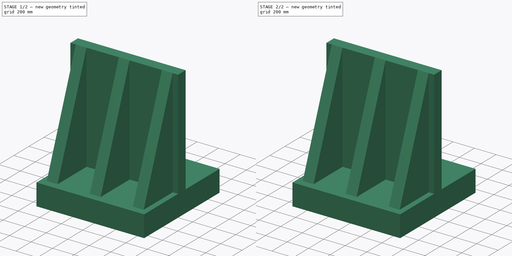
[diagram: build sequence overview — one tinted view per stage of 2, left to right]
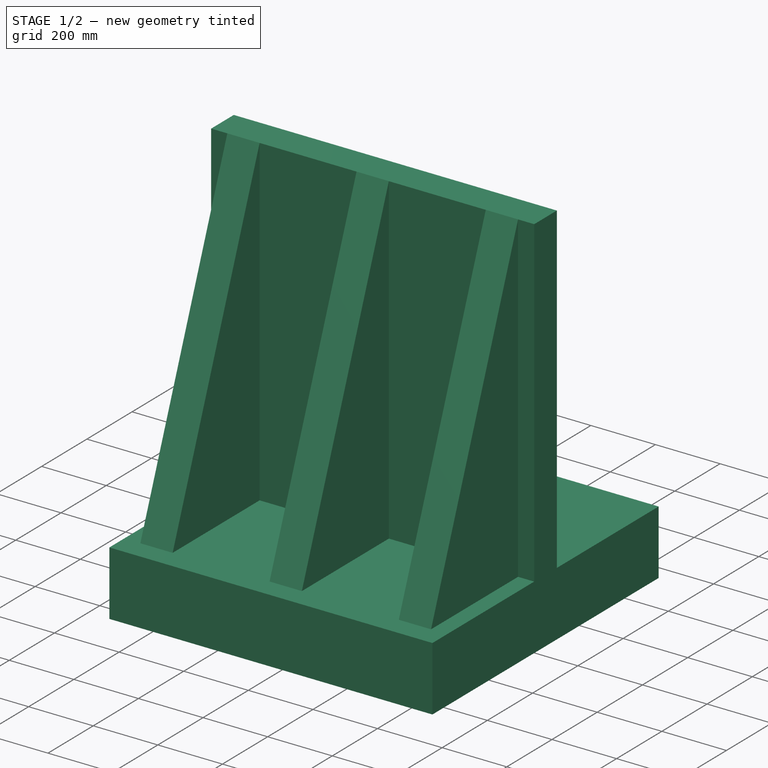
[diagram: stage 1 of 2 — iso view after this stage's code; geometry added in this stage tinted green]
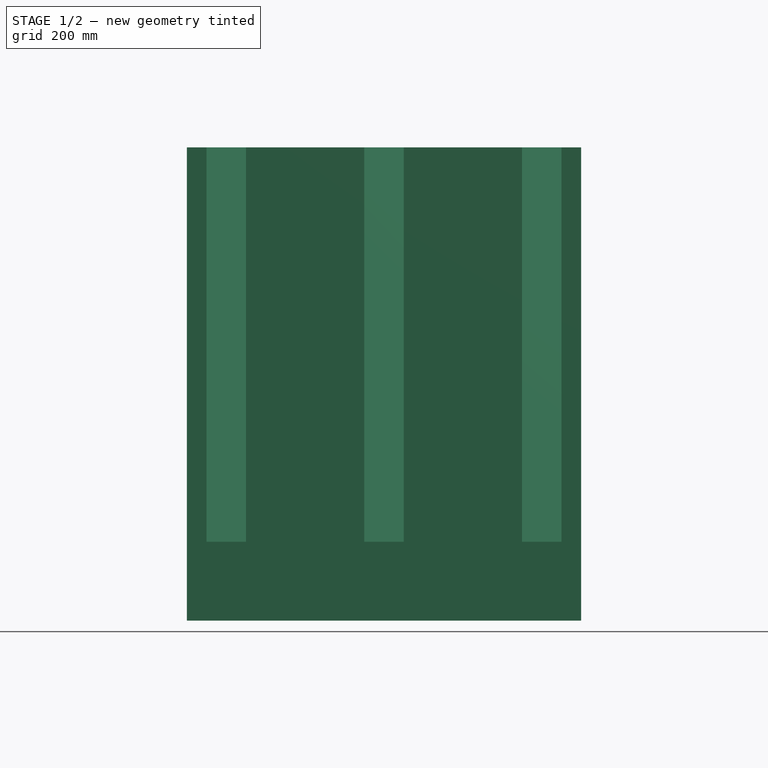
[diagram: stage 1 of 2 — front view after this stage's code; geometry added in this stage tinted green]
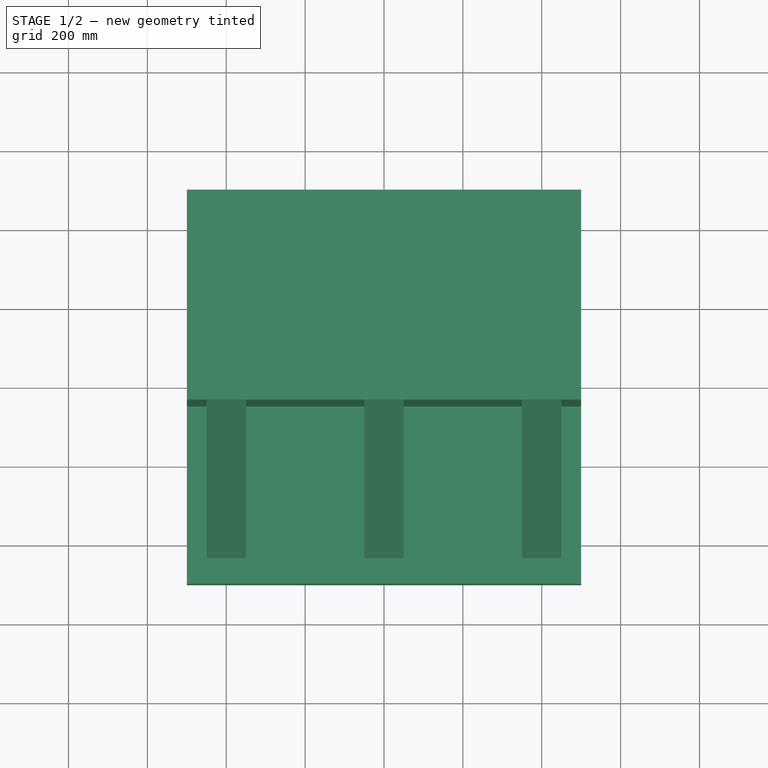
[diagram: stage 1 of 2 — top view after this stage's code; geometry added in this stage tinted green]
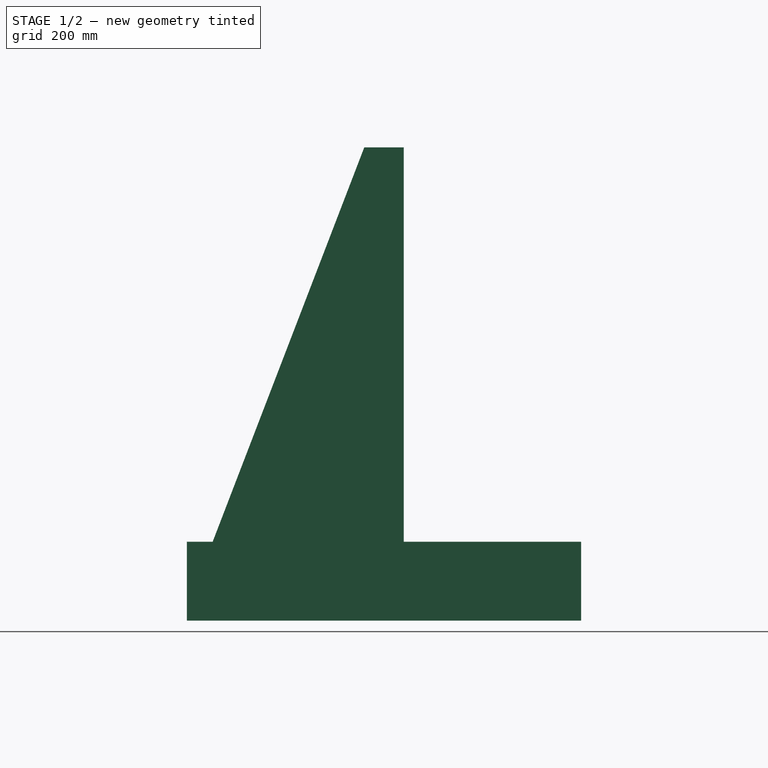
[diagram: stage 1 of 2 — right view after this stage's code; geometry added in this stage tinted green]
FCSTD DOCUMENT  (FreeCAD 0.16R6706 (Git))
Label: wall_with_ribs
License: All rights reserved
LicenseURL: http://en.wikipedia.org/wiki/All_rights_reserved
objects: Sketcher::SketchObject×4, PartDesign::Pad×3, Part::Feature×2, PartDesign::Pocket×1, Drawing::FeatureViewPart×1, Drawing::FeaturePage×1
note: 14 computed .brp shape members not serialized (recipe doc carries the construction recipe); baked Part::Feature solids carry a one-line shape summary decoded from their .brp

FEATURE [Part::Feature] Pad001001  label="Pad002"
  shape: bbox 1000 x 1000 x 1200 mm, 10 faces (baked)
FEATURE [Sketcher::SketchObject] Sketch002
  ExternalGeometry = -> [Pad001001]
  Placement = pos=(0,0,200) rot=(0,0,1;0rad)
  Support = -> Pad001001 [Face5]
  sketch-geometry (12):
    g0: LineSegment StartX=-450 StartY=-50 StartZ=0 EndX=-350 EndY=-50 EndZ=0
    g1: LineSegment StartX=-350 StartY=-50 StartZ=0 EndX=-350 EndY=-434.473 EndZ=0
    g2: LineSegment StartX=-350 StartY=-434.473 StartZ=0 EndX=-450 EndY=-434.473 EndZ=0
    g3: LineSegment StartX=-450 StartY=-434.473 StartZ=0 EndX=-450 EndY=-50 EndZ=0
    g4: LineSegment StartX=-50 StartY=-50 StartZ=0 EndX=50 EndY=-50 EndZ=0
    g5: LineSegment StartX=50 StartY=-50 StartZ=0 EndX=50 EndY=-434.473 EndZ=0
    g6: LineSegment StartX=50 StartY=-434.473 StartZ=0 EndX=-50 EndY=-434.473 EndZ=0
    g7: LineSegment StartX=-50 StartY=-434.473 StartZ=0 EndX=-50 EndY=-50 EndZ=0
    g8: LineSegment StartX=350 StartY=-50 StartZ=0 EndX=450 EndY=-50 EndZ=0
    g9: LineSegment StartX=450 StartY=-50 StartZ=0 EndX=450 EndY=-434.473 EndZ=0
    g10: LineSegment StartX=450 StartY=-434.473 StartZ=0 EndX=350 EndY=-434.473 EndZ=0
    g11: LineSegment StartX=350 StartY=-434.473 StartZ=0 EndX=350 EndY=-50 EndZ=0
  constraints (35):
    c: Coincident(g0,g1)
    c: Coincident(g1,g2)
    c: Coincident(g2,g3)
    c: Coincident(g3,g0)
    c: Horizontal(g0)
    c: Horizontal(g2)
    c: Vertical(g1)
    c: Vertical(g3)
    c: PointOnObject(g0,g-3)
    c: Coincident(g4,g5)
    c: Coincident(g5,g6)
    c: Coincident(g6,g7)
    c: Coincident(g7,g4)
    c: Horizontal(g4)
    c: Horizontal(g6)
    c: Vertical(g5)
    c: Vertical(g7)
    c: PointOnObject(g4,g-3)
    c: Coincident(g8,g9)
    c: Coincident(g9,g10)
    c: Coincident(g10,g11)
    c: Coincident(g11,g8)
    c: Horizontal(g8)
    c: Horizontal(g10)
    c: Vertical(g9)
    c: Vertical(g11)
    c: PointOnObject(g8,g-3)
    c: Equal(g2,g6)
    c: Equal(g6,g10)
    c: Equal(g1,g7)
    c: Equal(g7,g11)
    c: DistanceX(g0,g4) = 300
    c: DistanceX(g4,g8) = 300
    c: Symmetric(g4,g4,g-2)
    c: DistanceX(g6,g5) = 100
FEATURE [PartDesign::Pad] Pad001002
  Length = 1000
  Length2 = 100
  Sketch = -> Sketch002
  Type = 0
FEATURE [Sketcher::SketchObject] Sketch003
  ExternalGeometry = -> [Pad001002]
  Placement = pos=(450,0,0) rot=(0.57735,0.57735,0.57735;2.0944rad)
  Support = -> Pad001002 [Face22]
  sketch-geometry (4):
    g0: LineSegment StartX=-434.553 StartY=1404.55 StartZ=0 EndX=-50 EndY=1200 EndZ=0
    g1: LineSegment StartX=-50 StartY=1200 StartZ=0 EndX=-434.473 EndY=200 EndZ=0
    g2: LineSegment StartX=-434.473 StartY=200 StartZ=0 EndX=-925.787 EndY=796.809 EndZ=0
    g3: LineSegment StartX=-925.787 StartY=796.809 StartZ=0 EndX=-434.553 EndY=1404.55 EndZ=0
  constraints (6):
    c: Coincident(g0,g-3)
    c: Coincident(g0,g1)
    c: Coincident(g1,g-4)
    c: Coincident(g1,g2)
    c: Coincident(g2,g3)
    c: Coincident(g3,g0)
FEATURE [PartDesign::Pocket] Pocket
  Length = 1000
  Sketch = -> Sketch003
  Type = 0
FEATURE [Part::Feature] Pocket001
  shape: bbox 1000 x 1000 x 1200 mm, 22 faces (baked)
FEATURE [Drawing::FeatureViewPart] View
  Direction = (1,-1,1)
  HiddenWidth = 0.15
  LineWidth = 0.35
  Rotation = 60
  Scale = 0.1
  ShowHiddenLines = false
  ShowSmoothLines = false
  Source = -> Pocket001
  Tolerance = 0.05
  ViewResult = <blob: 2782 chars omitted>
  Visible = true
  X = 105
  Y = 188.304
FEATURE [Drawing::FeaturePage] Page
  Group = -> [View]
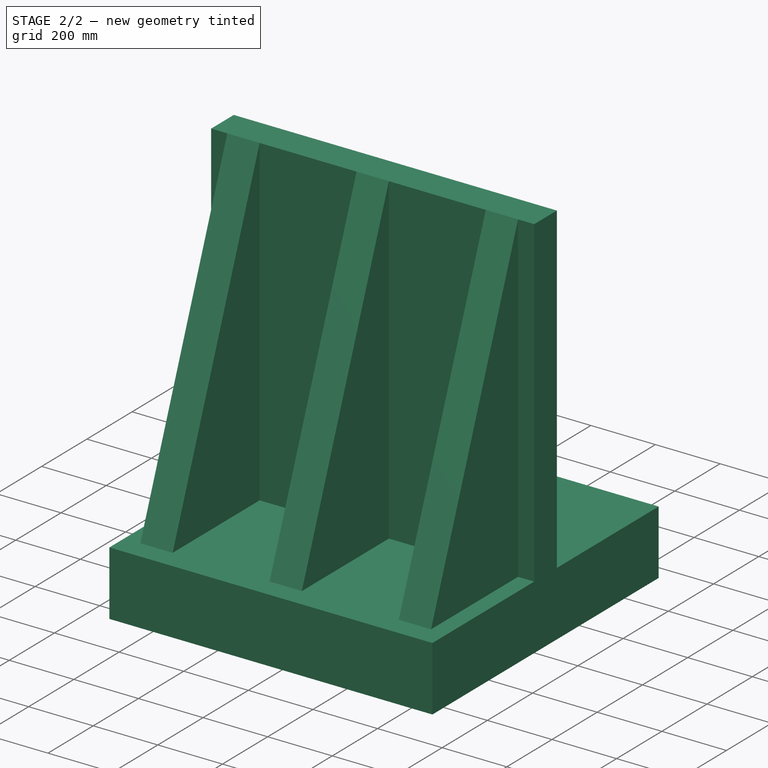
[diagram: stage 2 of 2 — iso view after this stage's code; geometry added in this stage tinted green]
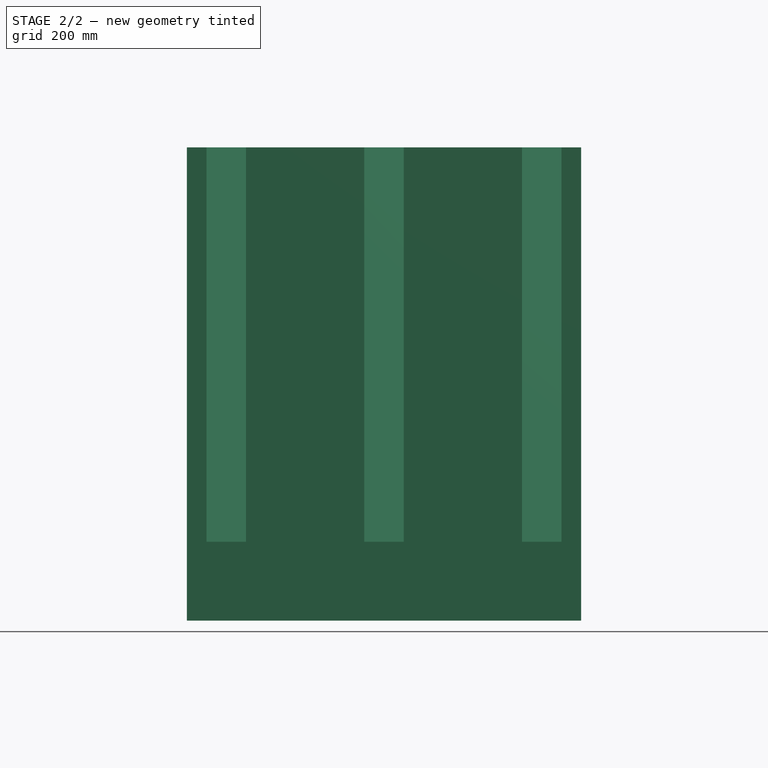
[diagram: stage 2 of 2 — front view after this stage's code; geometry added in this stage tinted green]
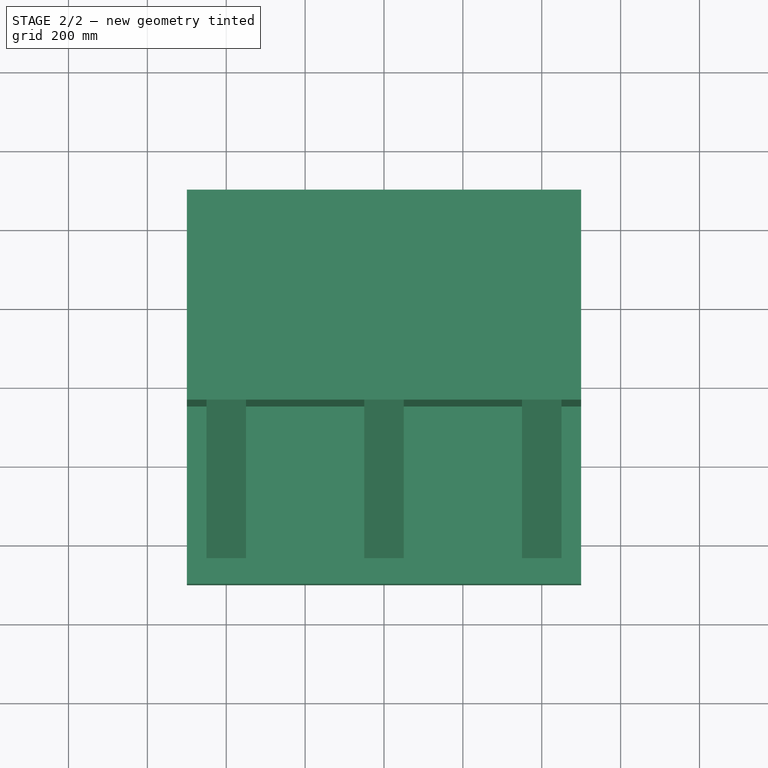
[diagram: stage 2 of 2 — top view after this stage's code; geometry added in this stage tinted green]
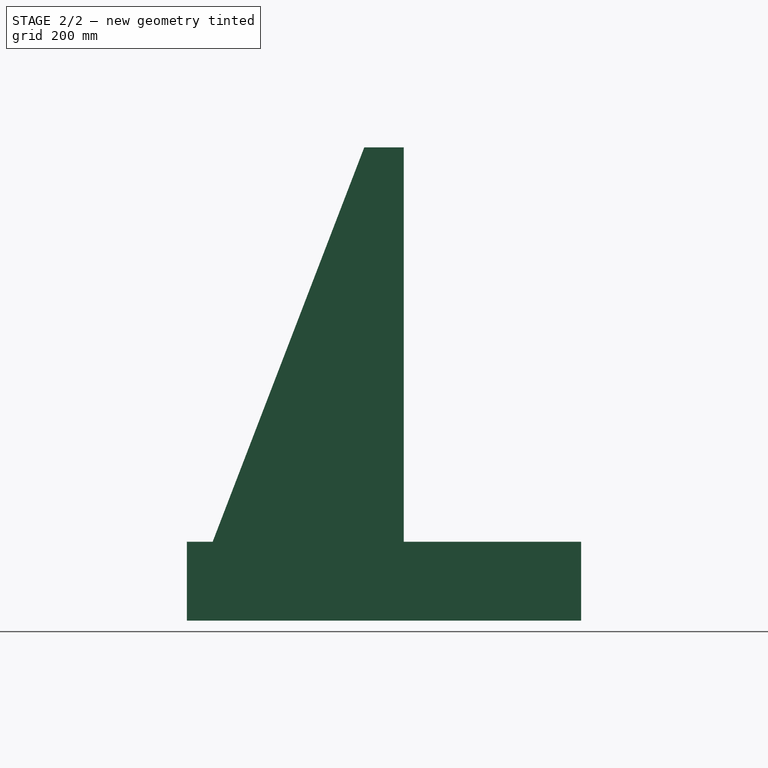
[diagram: stage 2 of 2 — right view after this stage's code; geometry added in this stage tinted green]
FEATURE [Sketcher::SketchObject] Sketch
  sketch-geometry (4):
    g0: LineSegment StartX=-500 StartY=500 StartZ=0 EndX=500 EndY=500 EndZ=0
    g1: LineSegment StartX=500 StartY=500 StartZ=0 EndX=500 EndY=-500 EndZ=0
    g2: LineSegment StartX=500 StartY=-500 StartZ=0 EndX=-500 EndY=-500 EndZ=0
    g3: LineSegment StartX=-500 StartY=-500 StartZ=0 EndX=-500 EndY=500 EndZ=0
  constraints (11):
    c: Coincident(g0,g1)
    c: Coincident(g1,g2)
    c: Coincident(g2,g3)
    c: Coincident(g3,g0)
    c: Horizontal(g0)
    c: Horizontal(g2)
    c: Vertical(g1)
    c: Vertical(g3)
    c: Symmetric(g1,g0,g-1)
    c: Equal(g0,g1)
    c: DistanceX(g0,g0) = 1000
FEATURE [PartDesign::Pad] Pad
  Length = 200
  Length2 = 100
  Sketch = -> Sketch
  Type = 0
FEATURE [Sketcher::SketchObject] Sketch001
  Placement = pos=(0,0,200) rot=(0,0,1;0rad)
  Support = -> Pad [Face6]
  sketch-geometry (4):
    g0: LineSegment StartX=-500 StartY=50 StartZ=0 EndX=500 EndY=50 EndZ=0
    g1: LineSegment StartX=500 StartY=50 StartZ=0 EndX=500 EndY=-50 EndZ=0
    g2: LineSegment StartX=500 StartY=-50 StartZ=0 EndX=-500 EndY=-50 EndZ=0
    g3: LineSegment StartX=-500 StartY=-50 StartZ=0 EndX=-500 EndY=50 EndZ=0
  constraints (11):
    c: Coincident(g0,g1)
    c: Coincident(g1,g2)
    c: Coincident(g2,g3)
    c: Coincident(g3,g0)
    c: Horizontal(g0)
    c: Horizontal(g2)
    c: Vertical(g1)
    c: Vertical(g3)
    c: Symmetric(g0,g1,g-1)
    c: DistanceX(g0,g0) = 1000
    c: DistanceY(g1,g1) = 100
FEATURE [PartDesign::Pad] Pad001
  Length = 1000
  Length2 = 100
  Sketch = -> Sketch001
  Type = 0
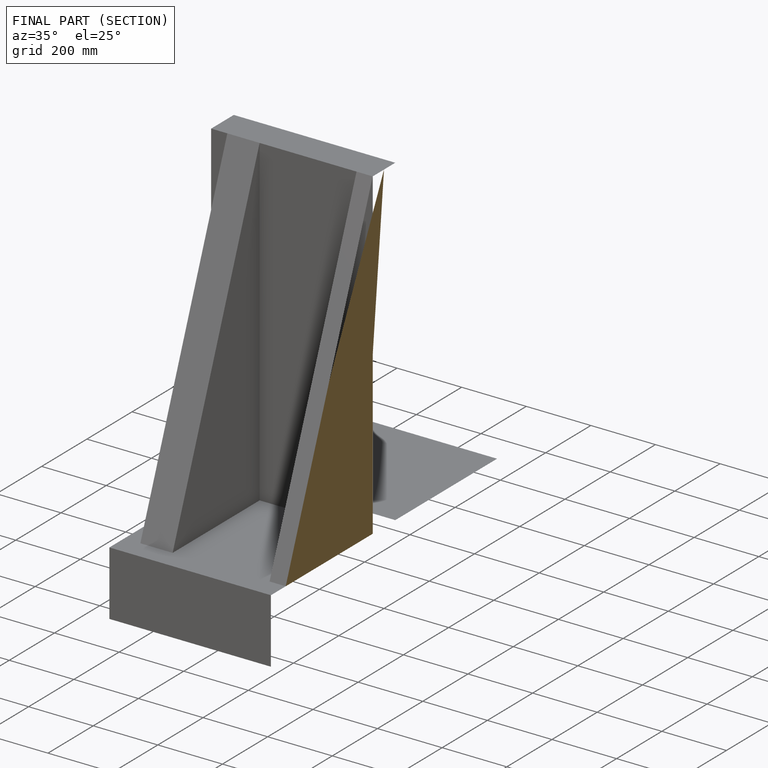
[diagram: finished part — half-section view (interior)]
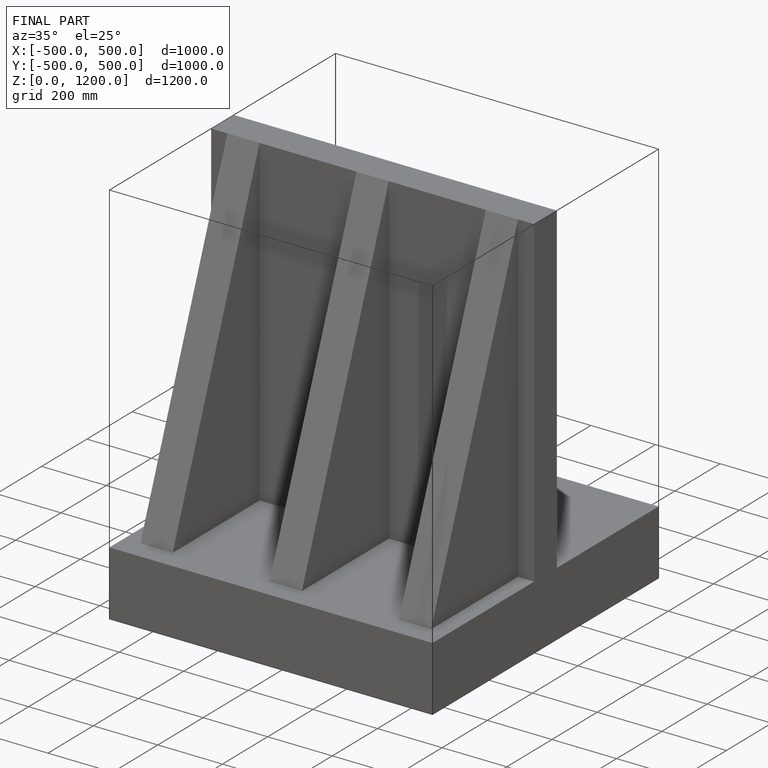
[diagram: finished part — iso view with bounding-box wireframe]
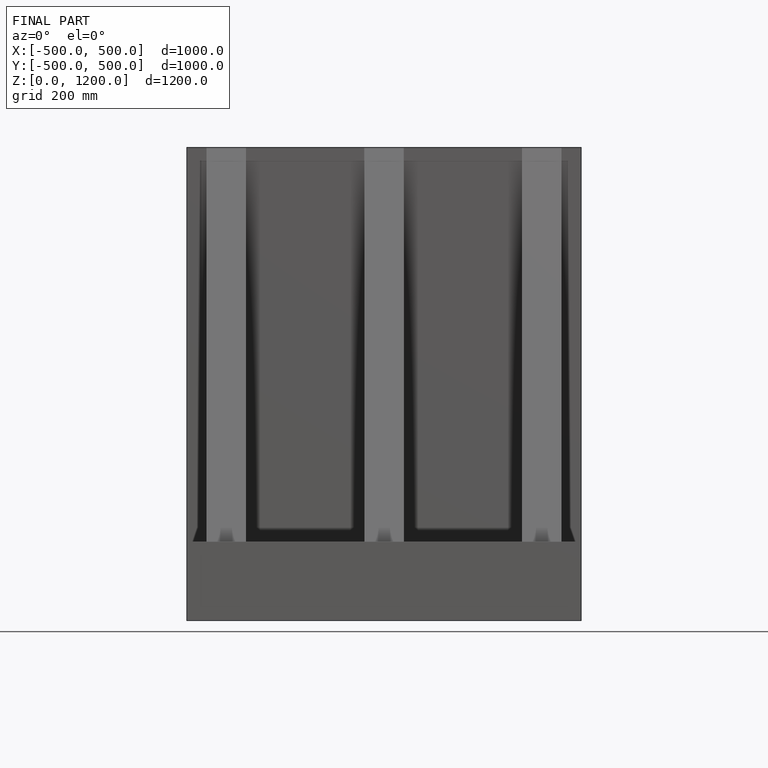
[diagram: finished part — front view with bounding-box wireframe]
